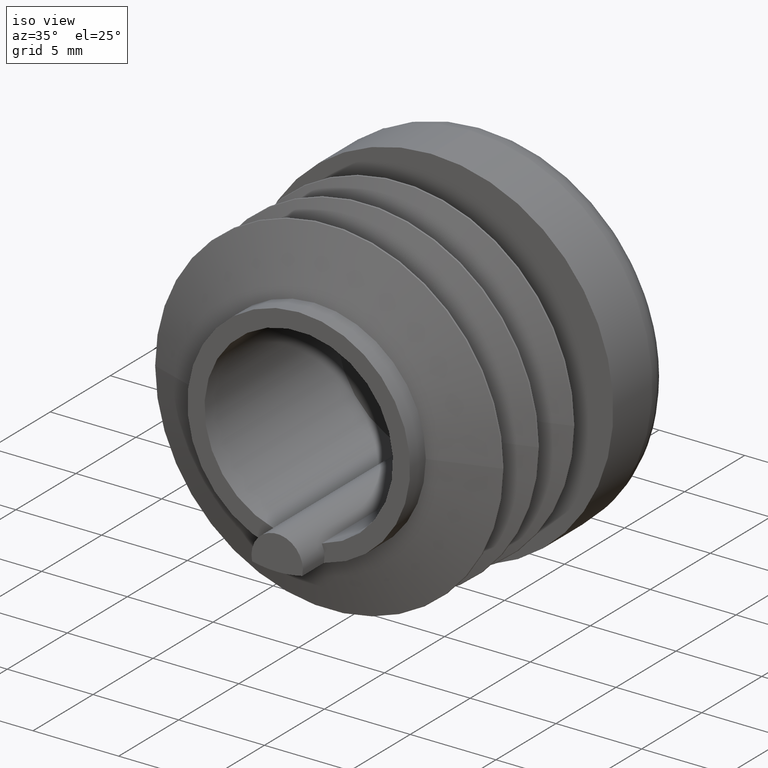
[diagram: clean part render]
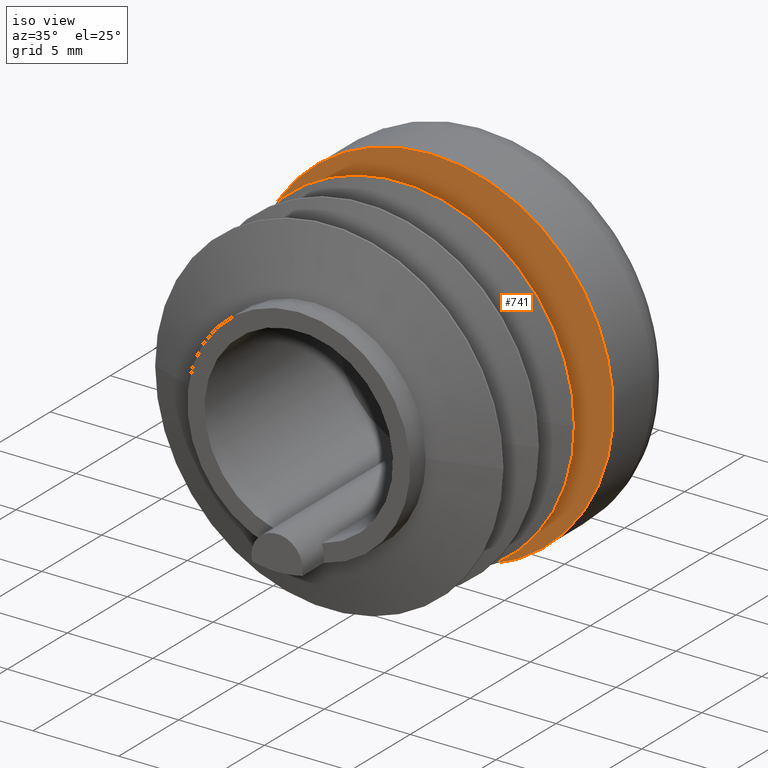
[diagram: same view with one face highlighted and labeled with its STEP entity id]
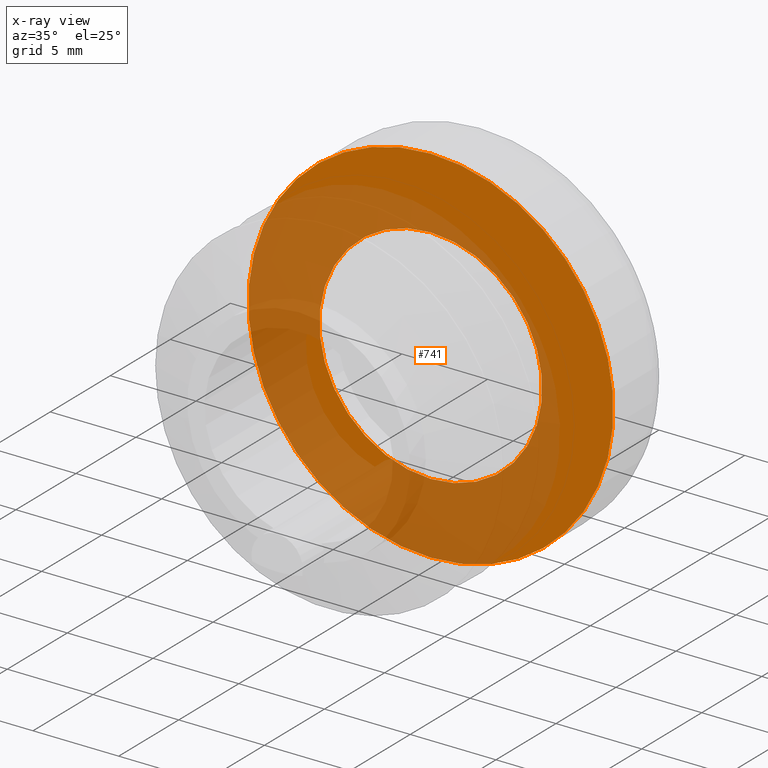
[diagram: x-ray of the same camera — body ghosted, the highlighted face saturated]
A machine part, iso view. The second image highlights one B-rep face of the part: STEP entity #741.
The next image is the same camera in x-ray: the body ghosted, the highlighted face saturated — about 57% of this face is hidden behind the body in this view.
In plain terms, the highlighted planar face has unit normal (0, -1, -0).
Its self-contained STEP definition (entity closure, byte-faithful):
#256 = ORIENTED_EDGE ( 'NONE', *, *, #1851, .F. ) ;
#294 = AXIS2_PLACEMENT_3D ( 'NONE', #1222, #3883, #4793 ) ;
#337 = CARTESIAN_POINT ( 'NONE',  ( 0.000000000000000000, 11.00000000000000178, 0.000000000000000000 ) ) ;
#741 = ADVANCED_FACE ( 'NONE', ( #4426, #2435 ), #7445, .T. ) ;
#1061 = CARTESIAN_POINT ( 'NONE',  ( 10.64999999999999858, 11.00000000000000178, 0.000000000000000000 ) ) ;
#1222 = CARTESIAN_POINT ( 'NONE',  ( 0.000000000000000000, 11.00000000000000178, 0.000000000000000000 ) ) ;
#1285 = DIRECTION ( 'NONE',  ( 0.000000000000000000, 0.000000000000000000, -1.000000000000000000 ) ) ;
#1394 = EDGE_LOOP ( 'NONE', ( #7202, #11111 ) ) ;
#1481 = EDGE_CURVE ( 'NONE', #9398, #4382, #10465, .T. ) ;
#1544 = AXIS2_PLACEMENT_3D ( 'NONE', #9974, #1875, #9017 ) ;
#1851 = EDGE_CURVE ( 'NONE', #10121, #6635, #5833, .T. ) ;
#1875 = DIRECTION ( 'NONE',  ( -0.000000000000000000, -1.000000000000000000, -0.000000000000000000 ) ) ;
#2435 = FACE_BOUND ( 'NONE', #5376, .T. ) ;
#2788 = CARTESIAN_POINT ( 'NONE',  ( 0.000000000000000000, 11.00000000000000178, -6.499999999999997335 ) ) ;
#2919 = DIRECTION ( 'NONE',  ( 0.000000000000000000, -1.000000000000000000, -0.000000000000000000 ) ) ;
#3072 = CARTESIAN_POINT ( 'NONE',  ( 0.000000000000000000, 11.00000000000000178, 0.000000000000000000 ) ) ;
#3632 = AXIS2_PLACEMENT_3D ( 'NONE', #3072, #9340, #1285 ) ;
#3883 = DIRECTION ( 'NONE',  ( -0.000000000000000000, -1.000000000000000000, -0.000000000000000000 ) ) ;
#3904 = CARTESIAN_POINT ( 'NONE',  ( 7.960204194457793505E-16, 11.00000000000000178, 6.499999999999997335 ) ) ;
#4024 = CARTESIAN_POINT ( 'NONE',  ( 1.304248841091931063E-15, 11.00000000000000178, 10.64999999999999858 ) ) ;
#4382 = VERTEX_POINT ( 'NONE', #4024 ) ;
#4426 = FACE_OUTER_BOUND ( 'NONE', #1394, .T. ) ;
#4793 = DIRECTION ( 'NONE',  ( 0.000000000000000000, 0.000000000000000000, -1.000000000000000000 ) ) ;
#5078 = AXIS2_PLACEMENT_3D ( 'NONE', #337, #8246, #5671 ) ;
#5376 = EDGE_LOOP ( 'NONE', ( #6461, #256 ) ) ;
#5671 = DIRECTION ( 'NONE',  ( 0.000000000000000000, 0.000000000000000000, -1.000000000000000000 ) ) ;
#5833 = CIRCLE ( 'NONE', #3632, 6.499999999999997335 ) ;
#6145 = CIRCLE ( 'NONE', #5078, 10.64999999999999858 ) ;
#6461 = ORIENTED_EDGE ( 'NONE', *, *, #11336, .F. ) ;
#6635 = VERTEX_POINT ( 'NONE', #2788 ) ;
#7202 = ORIENTED_EDGE ( 'NONE', *, *, #1481, .T. ) ;
#7445 = PLANE ( 'NONE',  #10092 ) ;
#7609 = CARTESIAN_POINT ( 'NONE',  ( 0.000000000000000000, 11.00000000000000178, -10.64999999999999858 ) ) ;
#8246 = DIRECTION ( 'NONE',  ( -0.000000000000000000, -1.000000000000000000, -0.000000000000000000 ) ) ;
#8376 = DIRECTION ( 'NONE',  ( 0.000000000000000000, 0.000000000000000000, -1.000000000000000000 ) ) ;
#9017 = DIRECTION ( 'NONE',  ( 0.000000000000000000, 0.000000000000000000, -1.000000000000000000 ) ) ;
#9221 = EDGE_CURVE ( 'NONE', #4382, #9398, #6145, .T. ) ;
#9340 = DIRECTION ( 'NONE',  ( -0.000000000000000000, -1.000000000000000000, -0.000000000000000000 ) ) ;
#9398 = VERTEX_POINT ( 'NONE', #7609 ) ;
#9974 = CARTESIAN_POINT ( 'NONE',  ( 0.000000000000000000, 11.00000000000000178, 0.000000000000000000 ) ) ;
#10092 = AXIS2_PLACEMENT_3D ( 'NONE', #1061, #2919, #8376 ) ;
#10121 = VERTEX_POINT ( 'NONE', #3904 ) ;
#10465 = CIRCLE ( 'NONE', #294, 10.64999999999999858 ) ;
#11111 = ORIENTED_EDGE ( 'NONE', *, *, #9221, .T. ) ;
#11336 = EDGE_CURVE ( 'NONE', #6635, #10121, #11530, .T. ) ;
#11530 = CIRCLE ( 'NONE', #1544, 6.499999999999997335 ) ;